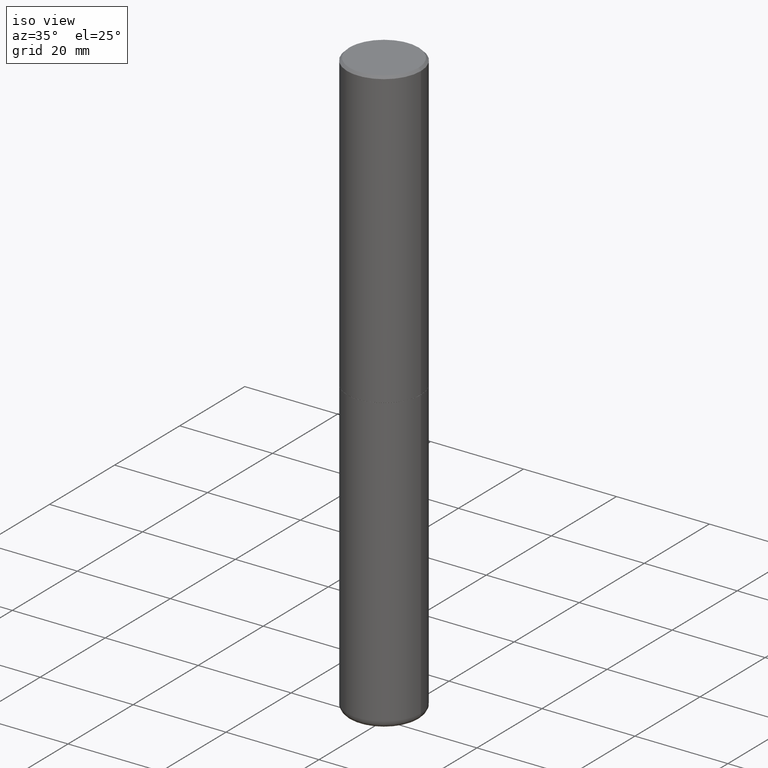
[diagram: clean part render]
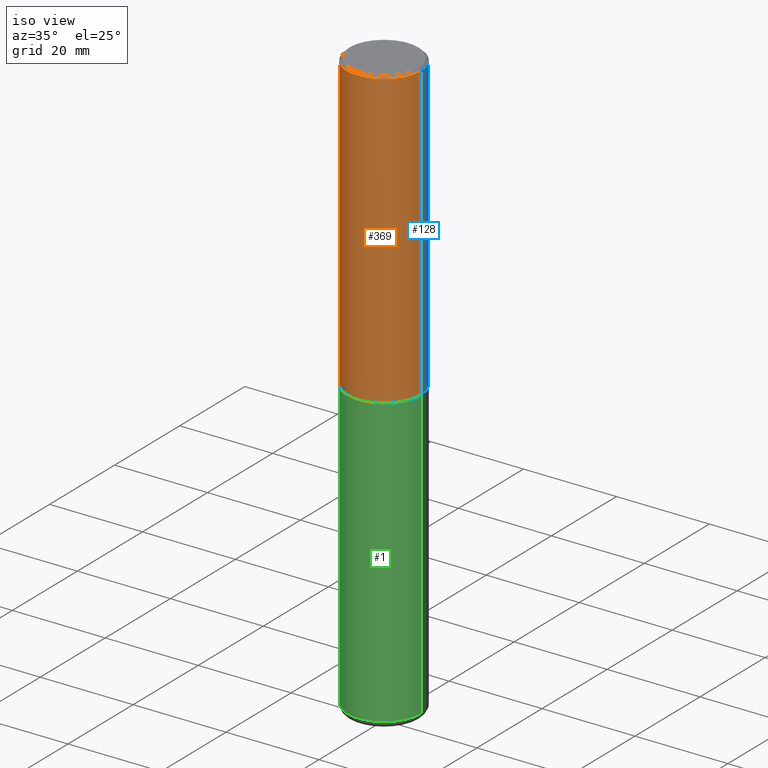
[diagram: same view with three faces highlighted in distinct colors, each labeled with its STEP entity id]
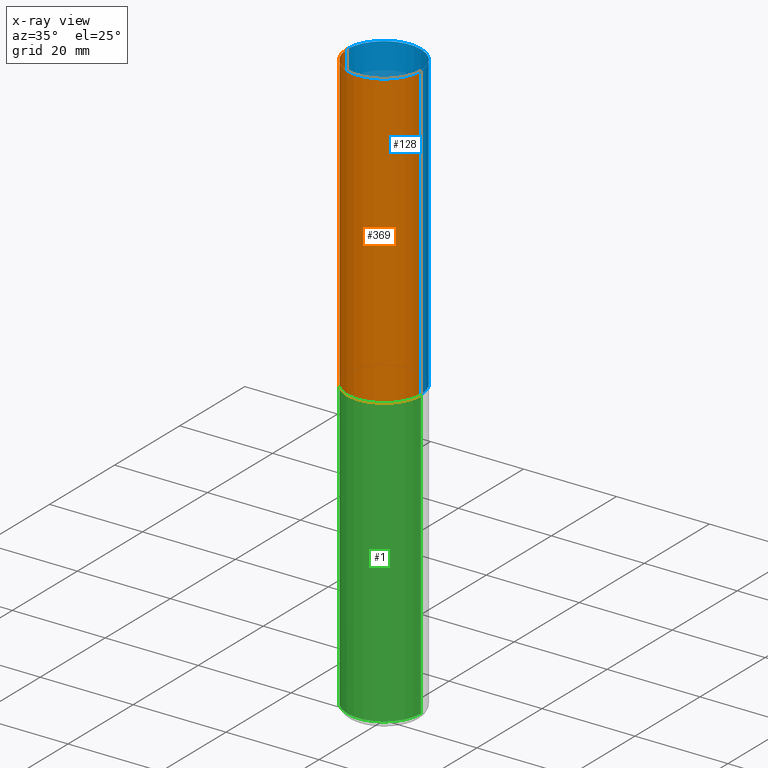
[diagram: x-ray of the same camera — body ghosted, the three highlighted faces saturated]
A machine part, iso view with three faces highlighted in distinct colors.
The next image is the same camera in x-ray (body ghosted, the three faces saturated) — at least one of them is partly hidden behind the body in this view.
Their STEP definitions:

[orange] entity #369 — the highlighted cylindrical surface (partial cylindrical patch) has radius 7.9375 mm, axis along (-0, 0, 1).
#6 = VERTEX_POINT ( 'NONE', #79 ) ;
#35 = CARTESIAN_POINT ( 'NONE',  ( 0.000000000000000000, 0.000000000000000000, 0.000000000000000000 ) ) ;
#40 = DIRECTION ( 'NONE',  ( -2.445468806185136877E-29, 3.491481338843145188E-15, 1.000000000000000000 ) ) ;
#66 = CARTESIAN_POINT ( 'NONE',  ( 4.890937612370290675E-31, -6.982962677686316261E-17, -0.02000000000000007327 ) ) ;
#79 = CARTESIAN_POINT ( 'NONE',  ( -0.3125000000000000000, -2.177074697022629142E-15, -2.499000000000000998 ) ) ;
#84 = CARTESIAN_POINT ( 'NONE',  ( -0.3124999999999997224, 2.112346210000093471E-15, -0.02000000000000007327 ) ) ;
#87 = DIRECTION ( 'NONE',  ( -2.445468806185136597E-29, 3.491481338843145583E-15, 1.000000000000000000 ) ) ;
#94 = EDGE_CURVE ( 'NONE', #6, #424, #220, .T. ) ;
#107 = CIRCLE ( 'NONE', #360, 0.3124999999999997224 ) ;
#112 = EDGE_LOOP ( 'NONE', ( #294, #301, #188, #427 ) ) ;
#115 = VERTEX_POINT ( 'NONE', #395 ) ;
#122 = EDGE_CURVE ( 'NONE', #199, #115, #107, .T. ) ;
#131 = LINE ( 'NONE', #168, #260 ) ;
#145 = AXIS2_PLACEMENT_3D ( 'NONE', #35, #281, #411 ) ;
#168 = CARTESIAN_POINT ( 'NONE',  ( -0.3124999999999998890, 2.220446049250312292E-15, -1.537167215704657391E-29 ) ) ;
#188 = ORIENTED_EDGE ( 'NONE', *, *, #215, .T. ) ;
#189 = CARTESIAN_POINT ( 'NONE',  ( 0.3125000000000000000, -1.090738770254598186E-14, -2.499000000000000998 ) ) ;
#199 = VERTEX_POINT ( 'NONE', #84 ) ;
#208 = LINE ( 'NONE', #268, #372 ) ;
#215 = EDGE_CURVE ( 'NONE', #424, #115, #208, .T. ) ;
#220 = CIRCLE ( 'NONE', #227, 0.3125000000000000000 ) ;
#227 = AXIS2_PLACEMENT_3D ( 'NONE', #341, #87, #399 ) ;
#251 = CYLINDRICAL_SURFACE ( 'NONE', #145, 0.3124999999999998890 ) ;
#257 = EDGE_CURVE ( 'NONE', #6, #199, #131, .T. ) ;
#260 = VECTOR ( 'NONE', #40, 39.37007874015748143 ) ;
#268 = CARTESIAN_POINT ( 'NONE',  ( 0.3124999999999998890, -2.182175836776957558E-15, 1.523805242436229235E-29 ) ) ;
#281 = DIRECTION ( 'NONE',  ( -2.445468806185136597E-29, 3.491481338843145583E-15, 1.000000000000000000 ) ) ;
#294 = ORIENTED_EDGE ( 'NONE', *, *, #257, .F. ) ;
#301 = ORIENTED_EDGE ( 'NONE', *, *, #94, .T. ) ;
#341 = CARTESIAN_POINT ( 'NONE',  ( 6.111226546656659252E-29, -8.725211865769023513E-15, -2.499000000000000998 ) ) ;
#344 = FACE_OUTER_BOUND ( 'NONE', #112, .T. ) ;
#360 = AXIS2_PLACEMENT_3D ( 'NONE', #66, #377, #426 ) ;
#364 = DIRECTION ( 'NONE',  ( -2.445468806185136877E-29, 3.491481338843145188E-15, 1.000000000000000000 ) ) ;
#369 = ADVANCED_FACE ( 'NONE', ( #344 ), #251, .T. ) ;
#372 = VECTOR ( 'NONE', #364, 39.37007874015748143 ) ;
#377 = DIRECTION ( 'NONE',  ( -2.445468806185136597E-29, 3.491481338843145583E-15, 1.000000000000000000 ) ) ;
#395 = CARTESIAN_POINT ( 'NONE',  ( 0.3124999999999997224, -2.213735251080464939E-15, -0.02000000000000007327 ) ) ;
#399 = DIRECTION ( 'NONE',  ( 1.000000000000000000, -6.982962677686265133E-15, 0.000000000000000000 ) ) ;
#411 = DIRECTION ( 'NONE',  ( 1.000000000000000000, -6.982962677686266711E-15, 4.876176775795935232E-29 ) ) ;
#424 = VERTEX_POINT ( 'NONE', #189 ) ;
#426 = DIRECTION ( 'NONE',  ( 1.000000000000000000, -6.982962677686266711E-15, 0.000000000000000000 ) ) ;
#427 = ORIENTED_EDGE ( 'NONE', *, *, #122, .F. ) ;

[blue] entity #128 — the highlighted cylindrical surface (partial cylindrical patch) has radius 7.9375 mm, axis along (-0, 0, 1).
#6 = VERTEX_POINT ( 'NONE', #79 ) ;
#22 = CARTESIAN_POINT ( 'NONE',  ( 6.111226546656659252E-29, -8.725211865769023513E-15, -2.499000000000000998 ) ) ;
#29 = AXIS2_PLACEMENT_3D ( 'NONE', #329, #58, #95 ) ;
#40 = DIRECTION ( 'NONE',  ( -2.445468806185136877E-29, 3.491481338843145188E-15, 1.000000000000000000 ) ) ;
#43 = DIRECTION ( 'NONE',  ( -2.445468806185136597E-29, 3.491481338843145583E-15, 1.000000000000000000 ) ) ;
#44 = EDGE_CURVE ( 'NONE', #424, #6, #412, .T. ) ;
#58 = DIRECTION ( 'NONE',  ( -2.445468806185136597E-29, 3.491481338843145583E-15, 1.000000000000000000 ) ) ;
#77 = AXIS2_PLACEMENT_3D ( 'NONE', #22, #167, #309 ) ;
#79 = CARTESIAN_POINT ( 'NONE',  ( -0.3125000000000000000, -2.177074697022629142E-15, -2.499000000000000998 ) ) ;
#84 = CARTESIAN_POINT ( 'NONE',  ( -0.3124999999999997224, 2.112346210000093471E-15, -0.02000000000000007327 ) ) ;
#95 = DIRECTION ( 'NONE',  ( 1.000000000000000000, -6.982962677686266711E-15, 4.876176775795935232E-29 ) ) ;
#115 = VERTEX_POINT ( 'NONE', #395 ) ;
#128 = ADVANCED_FACE ( 'NONE', ( #404 ), #242, .T. ) ;
#131 = LINE ( 'NONE', #168, #260 ) ;
#155 = AXIS2_PLACEMENT_3D ( 'NONE', #290, #43, #322 ) ;
#167 = DIRECTION ( 'NONE',  ( -2.445468806185136597E-29, 3.491481338843145583E-15, 1.000000000000000000 ) ) ;
#168 = CARTESIAN_POINT ( 'NONE',  ( -0.3124999999999998890, 2.220446049250312292E-15, -1.537167215704657391E-29 ) ) ;
#189 = CARTESIAN_POINT ( 'NONE',  ( 0.3125000000000000000, -1.090738770254598186E-14, -2.499000000000000998 ) ) ;
#199 = VERTEX_POINT ( 'NONE', #84 ) ;
#208 = LINE ( 'NONE', #268, #372 ) ;
#215 = EDGE_CURVE ( 'NONE', #424, #115, #208, .T. ) ;
#232 = ORIENTED_EDGE ( 'NONE', *, *, #393, .F. ) ;
#234 = EDGE_LOOP ( 'NONE', ( #297, #286, #232, #262 ) ) ;
#242 = CYLINDRICAL_SURFACE ( 'NONE', #29, 0.3124999999999998890 ) ;
#257 = EDGE_CURVE ( 'NONE', #6, #199, #131, .T. ) ;
#260 = VECTOR ( 'NONE', #40, 39.37007874015748143 ) ;
#262 = ORIENTED_EDGE ( 'NONE', *, *, #215, .F. ) ;
#268 = CARTESIAN_POINT ( 'NONE',  ( 0.3124999999999998890, -2.182175836776957558E-15, 1.523805242436229235E-29 ) ) ;
#286 = ORIENTED_EDGE ( 'NONE', *, *, #257, .T. ) ;
#290 = CARTESIAN_POINT ( 'NONE',  ( 4.890937612370290675E-31, -6.982962677686316261E-17, -0.02000000000000007327 ) ) ;
#296 = CIRCLE ( 'NONE', #155, 0.3124999999999997224 ) ;
#297 = ORIENTED_EDGE ( 'NONE', *, *, #44, .T. ) ;
#309 = DIRECTION ( 'NONE',  ( 1.000000000000000000, -6.982962677686265133E-15, 0.000000000000000000 ) ) ;
#322 = DIRECTION ( 'NONE',  ( 1.000000000000000000, -6.982962677686266711E-15, 0.000000000000000000 ) ) ;
#329 = CARTESIAN_POINT ( 'NONE',  ( 0.000000000000000000, 0.000000000000000000, 0.000000000000000000 ) ) ;
#364 = DIRECTION ( 'NONE',  ( -2.445468806185136877E-29, 3.491481338843145188E-15, 1.000000000000000000 ) ) ;
#372 = VECTOR ( 'NONE', #364, 39.37007874015748143 ) ;
#393 = EDGE_CURVE ( 'NONE', #115, #199, #296, .T. ) ;
#395 = CARTESIAN_POINT ( 'NONE',  ( 0.3124999999999997224, -2.213735251080464939E-15, -0.02000000000000007327 ) ) ;
#404 = FACE_OUTER_BOUND ( 'NONE', #234, .T. ) ;
#412 = CIRCLE ( 'NONE', #77, 0.3125000000000000000 ) ;
#424 = VERTEX_POINT ( 'NONE', #189 ) ;

[green] entity #1 — the highlighted cylindrical surface (partial cylindrical patch) has radius 7.9375 mm, axis along (-0, 0, 1).
#1 = ADVANCED_FACE ( 'NONE', ( #19 ), #366, .T. ) ;
#17 = VERTEX_POINT ( 'NONE', #59 ) ;
#19 = FACE_OUTER_BOUND ( 'NONE', #386, .T. ) ;
#31 = AXIS2_PLACEMENT_3D ( 'NONE', #418, #356, #225 ) ;
#37 = VECTOR ( 'NONE', #413, 39.37007874015748143 ) ;
#45 = ORIENTED_EDGE ( 'NONE', *, *, #156, .F. ) ;
#51 = CARTESIAN_POINT ( 'NONE',  ( -0.3125000000000000000, -1.076786453124619412E-14, -2.500000000000000000 ) ) ;
#54 = VERTEX_POINT ( 'NONE', #51 ) ;
#59 = CARTESIAN_POINT ( 'NONE',  ( 0.3125000000000000000, -1.091087918388482329E-14, -2.500000000000000000 ) ) ;
#71 = CIRCLE ( 'NONE', #31, 0.3124999999999994449 ) ;
#73 = VERTEX_POINT ( 'NONE', #435 ) ;
#81 = ORIENTED_EDGE ( 'NONE', *, *, #410, .T. ) ;
#90 = ORIENTED_EDGE ( 'NONE', *, *, #307, .T. ) ;
#96 = AXIS2_PLACEMENT_3D ( 'NONE', #328, #392, #124 ) ;
#99 = LINE ( 'NONE', #265, #282 ) ;
#106 = CARTESIAN_POINT ( 'NONE',  ( 6.113672015462842613E-29, -8.728703347107864943E-15, -2.500000000000000000 ) ) ;
#109 = ORIENTED_EDGE ( 'NONE', *, *, #333, .F. ) ;
#110 = CIRCLE ( 'NONE', #213, 0.3125000000000000000 ) ;
#124 = DIRECTION ( 'NONE',  ( 1.000000000000000000, -6.982962677686266711E-15, 4.876176775795936353E-29 ) ) ;
#156 = EDGE_CURVE ( 'NONE', #73, #54, #99, .T. ) ;
#157 = VERTEX_POINT ( 'NONE', #436 ) ;
#211 = DIRECTION ( 'NONE',  ( 1.000000000000000000, -6.982962677686265133E-15, 0.000000000000000000 ) ) ;
#213 = AXIS2_PLACEMENT_3D ( 'NONE', #106, #254, #211 ) ;
#225 = DIRECTION ( 'NONE',  ( 1.000000000000000000, -6.982962677686269077E-15, 0.000000000000000000 ) ) ;
#247 = DIRECTION ( 'NONE',  ( -2.445468806185136877E-29, 3.491481338843145188E-15, 1.000000000000000000 ) ) ;
#249 = CARTESIAN_POINT ( 'NONE',  ( 0.3124999999999997224, -2.182175836776956375E-15, 1.523805242436228674E-29 ) ) ;
#254 = DIRECTION ( 'NONE',  ( -2.445468806185136597E-29, 3.491481338843145583E-15, 1.000000000000000000 ) ) ;
#265 = CARTESIAN_POINT ( 'NONE',  ( -0.3124999999999997224, 2.220446049250311109E-15, -1.537167215704656831E-29 ) ) ;
#282 = VECTOR ( 'NONE', #247, 39.37007874015748143 ) ;
#307 = EDGE_CURVE ( 'NONE', #157, #17, #409, .T. ) ;
#328 = CARTESIAN_POINT ( 'NONE',  ( 0.000000000000000000, 0.000000000000000000, 0.000000000000000000 ) ) ;
#333 = EDGE_CURVE ( 'NONE', #54, #17, #110, .T. ) ;
#356 = DIRECTION ( 'NONE',  ( -2.445468806185136597E-29, 3.491481338843145583E-15, 1.000000000000000000 ) ) ;
#366 = CYLINDRICAL_SURFACE ( 'NONE', #96, 0.3124999999999997224 ) ;
#386 = EDGE_LOOP ( 'NONE', ( #45, #81, #90, #109 ) ) ;
#392 = DIRECTION ( 'NONE',  ( -2.445468806185136597E-29, 3.491481338843145583E-15, 1.000000000000000000 ) ) ;
#409 = LINE ( 'NONE', #249, #37 ) ;
#410 = EDGE_CURVE ( 'NONE', #73, #157, #71, .T. ) ;
#413 = DIRECTION ( 'NONE',  ( -2.445468806185136877E-29, 3.491481338843145188E-15, 1.000000000000000000 ) ) ;
#418 = CARTESIAN_POINT ( 'NONE',  ( 1.208061590255457595E-28, -1.724791781388513999E-14, -4.940000000000000391 ) ) ;
#435 = CARTESIAN_POINT ( 'NONE',  ( -0.3124999999999994449, -1.502747176463483007E-14, -4.940000000000000391 ) ) ;
#436 = CARTESIAN_POINT ( 'NONE',  ( 0.3124999999999994449, -1.943009365066209676E-14, -4.940000000000000391 ) ) ;